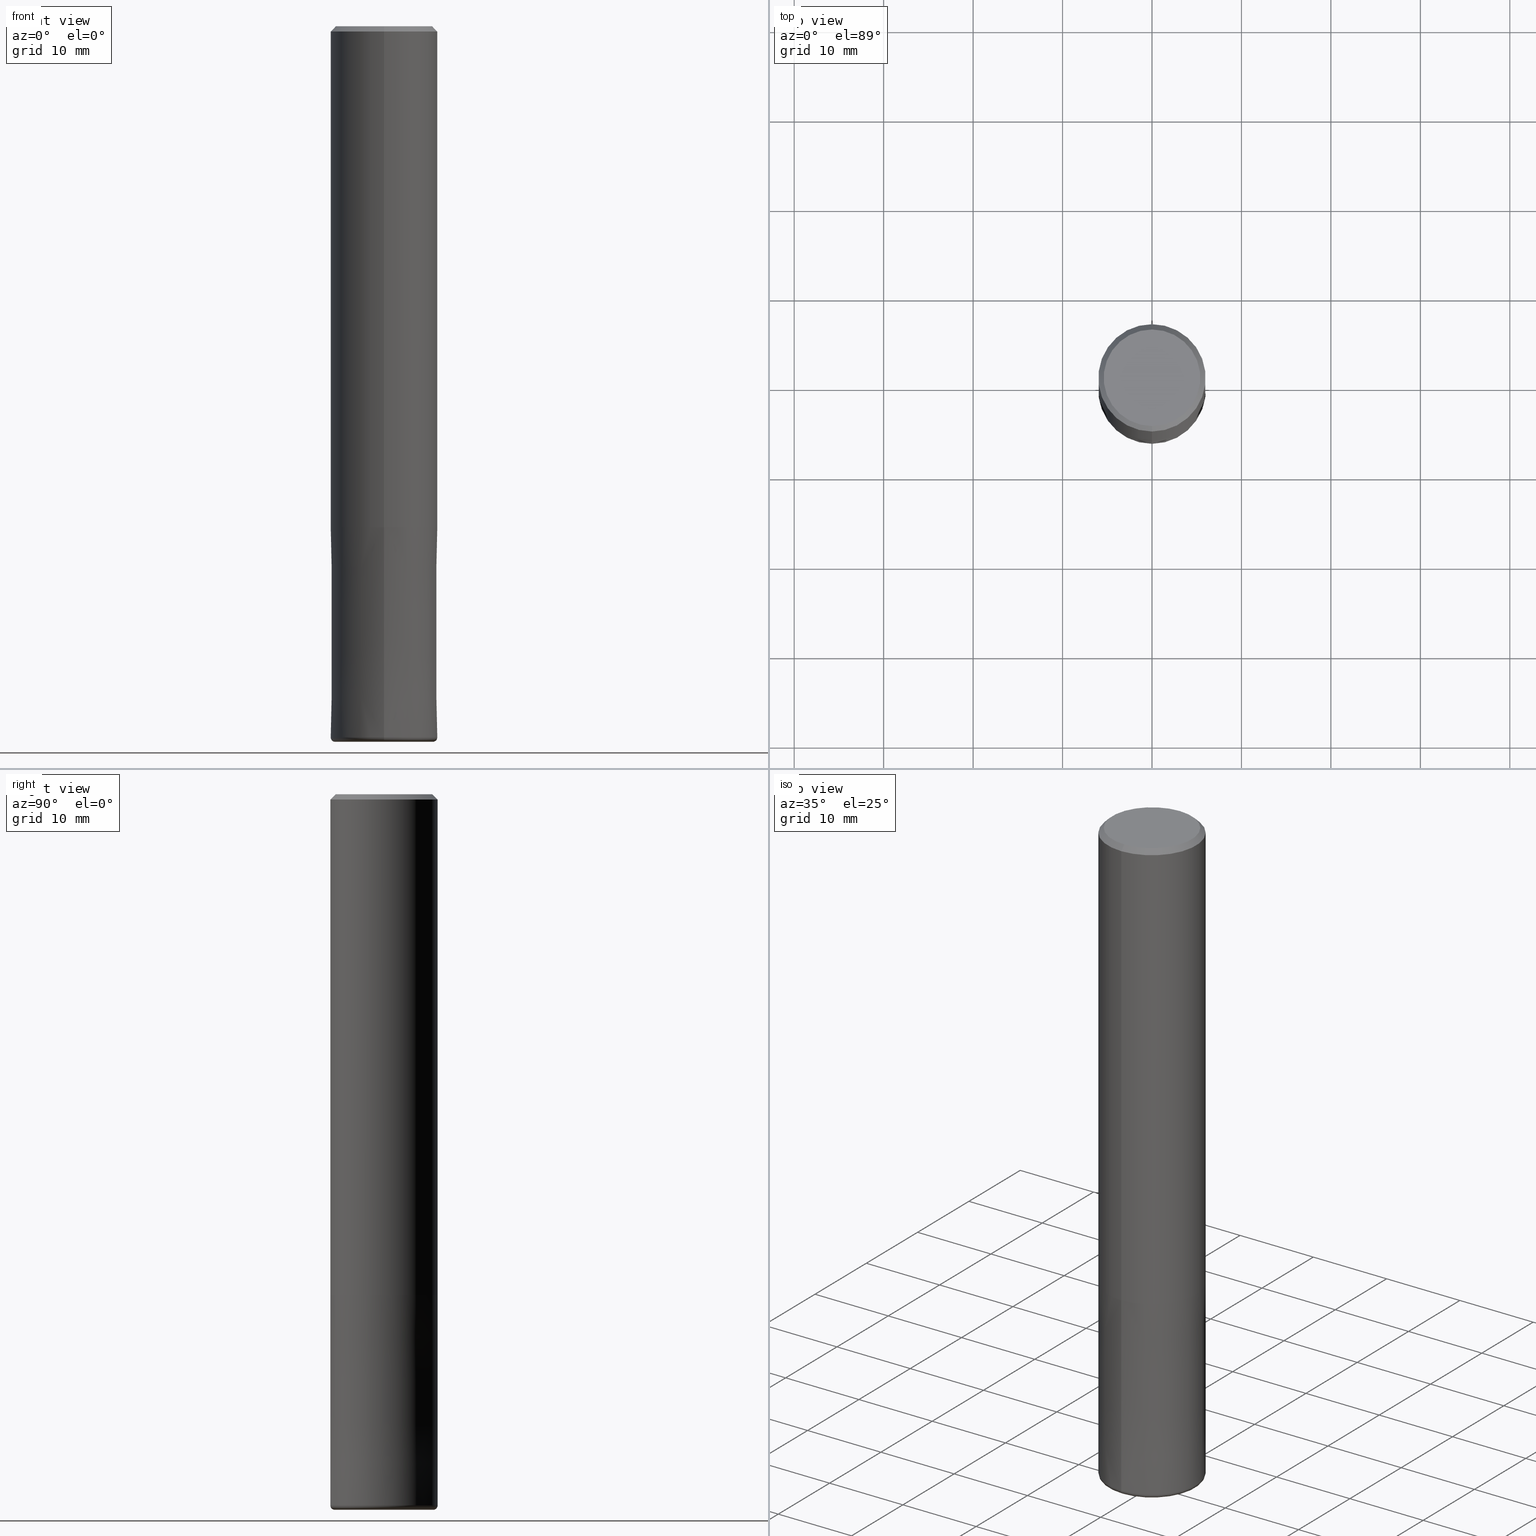
[diagram: canonical four-view strip — front | top / right | iso, engineering-drawing reading convention]
A machine part, canonical four-view strip (front | top / right | iso — engineering-drawing reading convention). The complete STEP part file that produces these views, byte-faithful:
ISO-10303-21;
HEADER;
FILE_DESCRIPTION(('no description'),'unknown implementation level');
FILE_NAME('CXRS5120-05-2400-Huellk.stp','  ',('CIMSOURCE GmbH'),('CADClick - KiM GmbH - www.kimweb.de'),'unknown preprocess','ACIS','unknown authorization');
FILE_SCHEMA(('automotive_design'));
ENDSEC;
DATA;
#1=MECHANICAL_DESIGN_GEOMETRIC_PRESENTATION_REPRESENTATION(' ',(#14,#15,#16,#17,#18,#19,#20,#21,#22,#23,#24,#25,#26,#27,#28,#29,#30,#31,#32,#33,#34,#35,#36,#37,#38,#39,#40,#41,#42,#43,#44,#45,#46,#47,#48,#49,#50,#51,#52,#53,#54,#55,#56,#57,#58,#59,#60,#61,#62,#63,#64,#65,#66,#67,#68,#69,#70,#71,#72,#73,#74,#75,#76,#77,#78,#79,#80,#81,#82,#83,#84),#10);
#2=PRODUCT_DEFINITION_CONTEXT('',#85,'design');
#3=APPLICATION_PROTOCOL_DEFINITION('INTERNATIONAL STANDARD','automotive_design',1994,#85);
#4=PRODUCT_CATEGORY_RELATIONSHIP('NONE','NONE',#86,#87);
#5=SHAPE_DEFINITION_REPRESENTATION(#88,#89);
#6=PRODUCT_DEFINITION_CONTEXT('',#90,'design');
#7=APPLICATION_PROTOCOL_DEFINITION('INTERNATIONAL STANDARD','automotive_design',1994,#90);
#8=PRODUCT_CATEGORY_RELATIONSHIP('NONE','NONE',#91,#92);
#9=SHAPE_DEFINITION_REPRESENTATION(#93,#94);
#10= (GEOMETRIC_REPRESENTATION_CONTEXT(3)GLOBAL_UNCERTAINTY_ASSIGNED_CONTEXT((#97))GLOBAL_UNIT_ASSIGNED_CONTEXT((#99,#100,#101))REPRESENTATION_CONTEXT('NONE','WORKSPACE'));
#14=STYLED_ITEM('',(#103),#104);
#15=STYLED_ITEM('',(#105),#106);
#16=STYLED_ITEM('',(#107),#108);
#17=STYLED_ITEM('',(#109),#110);
#18=STYLED_ITEM('',(#111),#112);
#19=STYLED_ITEM('',(#113),#114);
#20=STYLED_ITEM('',(#115),#116);
#21=STYLED_ITEM('',(#117),#118);
#22=STYLED_ITEM('',(#119),#120);
#23=STYLED_ITEM('',(#121),#122);
#24=STYLED_ITEM('',(#123),#124);
#25=STYLED_ITEM('',(#125),#126);
#26=STYLED_ITEM('',(#127),#128);
#27=STYLED_ITEM('',(#129),#130);
#28=STYLED_ITEM('',(#131),#132);
#29=STYLED_ITEM('',(#133),#134);
#30=STYLED_ITEM('',(#135),#136);
#31=STYLED_ITEM('',(#137),#138);
#32=STYLED_ITEM('',(#139),#140);
#33=STYLED_ITEM('',(#141),#142);
#34=STYLED_ITEM('',(#143),#144);
#35=STYLED_ITEM('',(#145),#146);
#36=STYLED_ITEM('',(#147),#148);
#37=STYLED_ITEM('',(#149),#150);
#38=STYLED_ITEM('',(#151),#152);
#39=STYLED_ITEM('',(#153),#154);
#40=STYLED_ITEM('',(#155),#156);
#41=STYLED_ITEM('',(#157),#158);
#42=STYLED_ITEM('',(#159),#160);
#43=STYLED_ITEM('',(#161),#162);
#44=STYLED_ITEM('',(#163),#164);
#45=STYLED_ITEM('',(#165),#166);
#46=STYLED_ITEM('',(#167),#168);
#47=STYLED_ITEM('',(#169),#170);
#48=STYLED_ITEM('',(#171),#172);
#49=STYLED_ITEM('',(#173),#174);
#50=STYLED_ITEM('',(#175),#176);
#51=STYLED_ITEM('',(#177),#178);
#52=STYLED_ITEM('',(#179),#180);
#53=STYLED_ITEM('',(#181),#182);
#54=STYLED_ITEM('',(#183),#184);
#55=STYLED_ITEM('',(#185),#186);
#56=STYLED_ITEM('',(#187),#188);
#57=STYLED_ITEM('',(#189),#190);
#58=STYLED_ITEM('',(#191),#192);
#59=STYLED_ITEM('',(#193),#194);
#60=STYLED_ITEM('',(#195),#196);
#61=STYLED_ITEM('',(#197),#198);
#62=STYLED_ITEM('',(#199),#200);
#63=STYLED_ITEM('',(#201),#202);
#64=STYLED_ITEM('',(#203),#204);
#65=STYLED_ITEM('',(#205),#206);
#66=STYLED_ITEM('',(#207),#208);
#67=STYLED_ITEM('',(#209),#210);
#68=STYLED_ITEM('',(#211),#212);
#69=STYLED_ITEM('',(#213),#214);
#70=STYLED_ITEM('',(#215),#216);
#71=STYLED_ITEM('',(#217),#218);
#72=STYLED_ITEM('',(#219),#220);
#73=STYLED_ITEM('',(#221),#222);
#74=STYLED_ITEM('',(#223),#224);
#75=STYLED_ITEM('',(#225),#226);
#76=STYLED_ITEM('',(#227),#228);
#77=STYLED_ITEM('',(#229),#230);
#78=STYLED_ITEM('',(#231),#232);
#79=STYLED_ITEM('',(#233),#234);
#80=STYLED_ITEM('',(#235),#236);
#81=STYLED_ITEM('',(#237),#238);
#82=STYLED_ITEM('',(#239),#240);
#83=STYLED_ITEM('',(#241),#242);
#84=STYLED_ITEM('',(#243),#244);
#85=APPLICATION_CONTEXT(' ');
#86=PRODUCT_CATEGORY('part','NONE');
#87=PRODUCT_RELATED_PRODUCT_CATEGORY('detail',' ',(#245));
#88=PRODUCT_DEFINITION_SHAPE('NONE','NONE',#246);
#89=ADVANCED_BREP_SHAPE_REPRESENTATION('1',(#202,#247),#10);
#90=APPLICATION_CONTEXT(' ');
#91=PRODUCT_CATEGORY('part','NONE');
#92=PRODUCT_RELATED_PRODUCT_CATEGORY('detail',' ',(#248));
#93=PRODUCT_DEFINITION_SHAPE('NONE','NONE',#249);
#94=ADVANCED_BREP_SHAPE_REPRESENTATION('2',(#118,#250),#10);
#97=UNCERTAINTY_MEASURE_WITH_UNIT(LENGTH_MEASURE(1.0E-006),#99,'','');
#99= (CONVERSION_BASED_UNIT('MILLIMETRE',#253)LENGTH_UNIT()NAMED_UNIT(#256));
#100= (NAMED_UNIT(#258)PLANE_ANGLE_UNIT()SI_UNIT($,.RADIAN.));
#101= (NAMED_UNIT(#258)SOLID_ANGLE_UNIT()SI_UNIT($,.STERADIAN.));
#103=PRESENTATION_STYLE_ASSIGNMENT((#264));
#104=VERTEX_POINT('',#265);
#105=PRESENTATION_STYLE_ASSIGNMENT((#266));
#106=EDGE_CURVE('',#122,#206,#267,.T.);
#107=PRESENTATION_STYLE_ASSIGNMENT((#268));
#108=EDGE_CURVE('',#238,#232,#269,.T.);
#109=PRESENTATION_STYLE_ASSIGNMENT((#270));
#110=EDGE_CURVE('',#192,#182,#271,.T.);
#111=PRESENTATION_STYLE_ASSIGNMENT((#272));
#112=EDGE_CURVE('',#206,#154,#273,.T.);
#113=PRESENTATION_STYLE_ASSIGNMENT((#274));
#114=EDGE_CURVE('',#172,#166,#275,.T.);
#115=PRESENTATION_STYLE_ASSIGNMENT((#276));
#116=EDGE_CURVE('',#206,#122,#277,.T.);
#117=PRESENTATION_STYLE_ASSIGNMENT((#278));
#118=MANIFOLD_SOLID_BREP('2',#279);
#119=PRESENTATION_STYLE_ASSIGNMENT((#280));
#120=VERTEX_POINT('',#281);
#121=PRESENTATION_STYLE_ASSIGNMENT((#282));
#122=VERTEX_POINT('',#283);
#123=PRESENTATION_STYLE_ASSIGNMENT((#284));
#124=EDGE_CURVE('',#120,#122,#285,.T.);
#125=PRESENTATION_STYLE_ASSIGNMENT((#286));
#126=VERTEX_POINT('',#287);
#127=PRESENTATION_STYLE_ASSIGNMENT((#288));
#128=ADVANCED_FACE('',(#289),#290,.T.);
#129=PRESENTATION_STYLE_ASSIGNMENT((#291));
#130=EDGE_CURVE('',#104,#198,#292,.T.);
#131=PRESENTATION_STYLE_ASSIGNMENT((#293));
#132=VERTEX_POINT('',#294);
#133=PRESENTATION_STYLE_ASSIGNMENT((#295));
#134=EDGE_CURVE('',#126,#232,#296,.T.);
#135=PRESENTATION_STYLE_ASSIGNMENT((#297));
#136=EDGE_CURVE('',#228,#232,#298,.T.);
#137=PRESENTATION_STYLE_ASSIGNMENT((#299));
#138=ADVANCED_FACE('',(#300,#301),#302,.T.);
#139=PRESENTATION_STYLE_ASSIGNMENT((#303));
#140=ADVANCED_FACE('',(#304),#305,.T.);
#141=PRESENTATION_STYLE_ASSIGNMENT((#306));
#142=EDGE_CURVE('',#166,#150,#307,.T.);
#143=PRESENTATION_STYLE_ASSIGNMENT((#308));
#144=ADVANCED_FACE('',(#309),#310,.T.);
#145=PRESENTATION_STYLE_ASSIGNMENT((#311));
#146=EDGE_CURVE('',#182,#192,#312,.T.);
#147=PRESENTATION_STYLE_ASSIGNMENT((#313));
#148=EDGE_CURVE('',#166,#172,#314,.T.);
#149=PRESENTATION_STYLE_ASSIGNMENT((#315));
#150=VERTEX_POINT('',#316);
#151=PRESENTATION_STYLE_ASSIGNMENT((#317));
#152=ADVANCED_FACE('',(#318,#319),#320,.T.);
#153=PRESENTATION_STYLE_ASSIGNMENT((#321));
#154=VERTEX_POINT('',#322);
#155=PRESENTATION_STYLE_ASSIGNMENT((#323));
#156=ADVANCED_FACE('',(#324),#325,.F.);
#157=PRESENTATION_STYLE_ASSIGNMENT((#326));
#158=ADVANCED_FACE('',(#327),#328,.T.);
#159=PRESENTATION_STYLE_ASSIGNMENT((#329));
#160=EDGE_CURVE('',#198,#104,#330,.T.);
#161=PRESENTATION_STYLE_ASSIGNMENT((#331));
#162=EDGE_CURVE('',#228,#194,#332,.T.);
#163=PRESENTATION_STYLE_ASSIGNMENT((#333));
#164=EDGE_CURVE('',#198,#176,#334,.T.);
#165=PRESENTATION_STYLE_ASSIGNMENT((#335));
#166=VERTEX_POINT('',#336);
#167=PRESENTATION_STYLE_ASSIGNMENT((#337));
#168=EDGE_CURVE('',#122,#182,#338,.T.);
#169=PRESENTATION_STYLE_ASSIGNMENT((#339));
#170=EDGE_CURVE('',#132,#150,#340,.T.);
#171=PRESENTATION_STYLE_ASSIGNMENT((#341));
#172=VERTEX_POINT('',#342);
#173=PRESENTATION_STYLE_ASSIGNMENT((#343));
#174=ADVANCED_FACE('',(#344),#345,.F.);
#175=PRESENTATION_STYLE_ASSIGNMENT((#346));
#176=VERTEX_POINT('',#347);
#177=PRESENTATION_STYLE_ASSIGNMENT((#348));
#178=EDGE_CURVE('',#236,#104,#349,.T.);
#179=PRESENTATION_STYLE_ASSIGNMENT((#350));
#180=ADVANCED_FACE('',(#351),#352,.T.);
#181=PRESENTATION_STYLE_ASSIGNMENT((#353));
#182=VERTEX_POINT('',#354);
#183=PRESENTATION_STYLE_ASSIGNMENT((#355));
#184=ADVANCED_FACE('',(#356,#357),#358,.T.);
#185=PRESENTATION_STYLE_ASSIGNMENT((#359));
#186=EDGE_CURVE('',#150,#132,#360,.T.);
#187=PRESENTATION_STYLE_ASSIGNMENT((#361));
#188=EDGE_CURVE('',#176,#236,#362,.T.);
#189=PRESENTATION_STYLE_ASSIGNMENT((#363));
#190=ADVANCED_FACE('',(#364),#365,.T.);
#191=PRESENTATION_STYLE_ASSIGNMENT((#366));
#192=VERTEX_POINT('',#367);
#193=PRESENTATION_STYLE_ASSIGNMENT((#368));
#194=VERTEX_POINT('',#369);
#195=PRESENTATION_STYLE_ASSIGNMENT((#370));
#196=EDGE_CURVE('',#232,#126,#371,.T.);
#197=PRESENTATION_STYLE_ASSIGNMENT((#372));
#198=VERTEX_POINT('',#373);
#199=PRESENTATION_STYLE_ASSIGNMENT((#374));
#200=EDGE_CURVE('',#120,#154,#375,.T.);
#201=PRESENTATION_STYLE_ASSIGNMENT((#376));
#202=MANIFOLD_SOLID_BREP('1',#377);
#203=PRESENTATION_STYLE_ASSIGNMENT((#378));
#204=EDGE_CURVE('',#132,#172,#379,.T.);
#205=PRESENTATION_STYLE_ASSIGNMENT((#380));
#206=VERTEX_POINT('',#381);
#207=PRESENTATION_STYLE_ASSIGNMENT((#382));
#208=EDGE_CURVE('',#192,#206,#383,.T.);
#209=PRESENTATION_STYLE_ASSIGNMENT((#384));
#210=ADVANCED_FACE('',(#385),#386,.T.);
#211=PRESENTATION_STYLE_ASSIGNMENT((#387));
#212=ADVANCED_FACE('',(#388),#389,.T.);
#213=PRESENTATION_STYLE_ASSIGNMENT((#390));
#214=ADVANCED_FACE('',(#391),#392,.T.);
#215=PRESENTATION_STYLE_ASSIGNMENT((#393));
#216=VERTEX_POINT('',#394);
#217=PRESENTATION_STYLE_ASSIGNMENT((#395));
#218=EDGE_CURVE('',#126,#216,#396,.T.);
#219=PRESENTATION_STYLE_ASSIGNMENT((#397));
#220=EDGE_CURVE('',#216,#238,#398,.T.);
#221=PRESENTATION_STYLE_ASSIGNMENT((#399));
#222=ADVANCED_FACE('',(#400),#401,.T.);
#223=PRESENTATION_STYLE_ASSIGNMENT((#402));
#224=ADVANCED_FACE('',(#403),#404,.T.);
#225=PRESENTATION_STYLE_ASSIGNMENT((#405));
#226=ADVANCED_FACE('',(#406),#407,.T.);
#227=PRESENTATION_STYLE_ASSIGNMENT((#408));
#228=VERTEX_POINT('',#409);
#229=PRESENTATION_STYLE_ASSIGNMENT((#410));
#230=EDGE_CURVE('',#194,#228,#411,.T.);
#231=PRESENTATION_STYLE_ASSIGNMENT((#412));
#232=VERTEX_POINT('',#413);
#233=PRESENTATION_STYLE_ASSIGNMENT((#414));
#234=EDGE_CURVE('',#238,#216,#415,.T.);
#235=PRESENTATION_STYLE_ASSIGNMENT((#416));
#236=VERTEX_POINT('',#417);
#237=PRESENTATION_STYLE_ASSIGNMENT((#418));
#238=VERTEX_POINT('',#419);
#239=PRESENTATION_STYLE_ASSIGNMENT((#420));
#240=EDGE_CURVE('',#126,#194,#421,.T.);
#241=PRESENTATION_STYLE_ASSIGNMENT((#422));
#242=EDGE_CURVE('',#236,#176,#423,.T.);
#243=PRESENTATION_STYLE_ASSIGNMENT((#424));
#244=EDGE_CURVE('',#154,#120,#425,.T.);
#245=PRODUCT('1','1','PART-1-DESC',(#426));
#246=PRODUCT_DEFINITION('NONE','NONE',#427,#2);
#247=AXIS2_PLACEMENT_3D('',#428,#429,#430);
#248=PRODUCT('2','2','PART-2-DESC',(#431));
#249=PRODUCT_DEFINITION('NONE','NONE',#432,#6);
#250=AXIS2_PLACEMENT_3D('',#433,#434,#435);
#253=LENGTH_MEASURE_WITH_UNIT(LENGTH_MEASURE(1.0),#436);
#256=DIMENSIONAL_EXPONENTS(1.0,0.0,0.0,0.0,0.0,0.0,0.0);
#258=DIMENSIONAL_EXPONENTS(0.0,0.0,0.0,0.0,0.0,0.0,0.0);
#264=POINT_STYLE(' ',#437,POSITIVE_LENGTH_MEASURE(1.0E-006),#438);
#265=CARTESIAN_POINT('',(0.0,2.7,-80.0));
#266=CURVE_STYLE('',#439,POSITIVE_LENGTH_MEASURE(1.0E-006),#440);
#267=CIRCLE('',#441,6.0);
#268=CURVE_STYLE('',#442,POSITIVE_LENGTH_MEASURE(1.0E-006),#443);
#269=CIRCLE('',#444,0.500000000000007);
#270=CURVE_STYLE('',#445,POSITIVE_LENGTH_MEASURE(1.0E-006),#446);
#271=CIRCLE('',#447,5.4);
#272=CURVE_STYLE('',#448,POSITIVE_LENGTH_MEASURE(1.0E-006),#449);
#273=LINE('',#450,#451);
#274=CURVE_STYLE('',#452,POSITIVE_LENGTH_MEASURE(1.0E-006),#453);
#275=CIRCLE('',#454,2.7);
#276=CURVE_STYLE('',#455,POSITIVE_LENGTH_MEASURE(1.0E-006),#456);
#277=CIRCLE('',#457,6.0);
#278=SURFACE_STYLE_USAGE(.BOTH.,#458);
#279=CLOSED_SHELL('',(#156,#158,#190,#138,#214,#128,#184,#174));
#280=POINT_STYLE(' ',#459,POSITIVE_LENGTH_MEASURE(1.0E-006),#460);
#281=CARTESIAN_POINT('',(7.34763812293426E-016,-6.0,-56.0));
#282=POINT_STYLE(' ',#461,POSITIVE_LENGTH_MEASURE(1.0E-006),#462);
#283=CARTESIAN_POINT('',(7.34763812293426E-016,-6.0,-0.600000000000001));
#284=CURVE_STYLE('',#463,POSITIVE_LENGTH_MEASURE(1.0E-006),#464);
#285=LINE('',#465,#466);
#286=POINT_STYLE(' ',#467,POSITIVE_LENGTH_MEASURE(1.0E-006),#468);
#287=CARTESIAN_POINT('',(7.34763812293426E-016,-6.0,-79.5));
#288=SURFACE_STYLE_USAGE(.BOTH.,#469);
#289=FACE_OUTER_BOUND('',#470,.T.);
#290=TOROIDAL_SURFACE('',#471,5.49999999999999,0.500000000000007);
#291=CURVE_STYLE('',#472,POSITIVE_LENGTH_MEASURE(1.0E-006),#473);
#292=CIRCLE('',#474,2.7);
#293=POINT_STYLE(' ',#475,POSITIVE_LENGTH_MEASURE(1.0E-006),#476);
#294=CARTESIAN_POINT('',(0.0,2.7,-56.0));
#295=CURVE_STYLE('',#477,POSITIVE_LENGTH_MEASURE(1.0E-006),#478);
#296=CIRCLE('',#479,6.0);
#297=CURVE_STYLE('',#480,POSITIVE_LENGTH_MEASURE(1.0E-006),#481);
#298=LINE('',#482,#483);
#299=SURFACE_STYLE_USAGE(.BOTH.,#484);
#300=FACE_OUTER_BOUND('',#485,.T.);
#301=FACE_BOUND('',#486,.T.);
#302=PLANE('',#487);
#303=SURFACE_STYLE_USAGE(.BOTH.,#488);
#304=FACE_OUTER_BOUND('',#489,.T.);
#305=CYLINDRICAL_SURFACE('',#490,2.7);
#306=CURVE_STYLE('',#491,POSITIVE_LENGTH_MEASURE(1.0E-006),#492);
#307=LINE('',#493,#494);
#308=SURFACE_STYLE_USAGE(.BOTH.,#495);
#309=FACE_OUTER_BOUND('',#496,.T.);
#310=CONICAL_SURFACE('',#497,5.7,0.785398163397447);
#311=CURVE_STYLE('',#498,POSITIVE_LENGTH_MEASURE(1.0E-006),#499);
#312=CIRCLE('',#500,5.4);
#313=CURVE_STYLE('',#501,POSITIVE_LENGTH_MEASURE(1.0E-006),#502);
#314=CIRCLE('',#503,2.7);
#315=POINT_STYLE(' ',#504,POSITIVE_LENGTH_MEASURE(1.0E-006),#505);
#316=CARTESIAN_POINT('',(3.30643715532042E-016,-2.7,-56.0));
#317=SURFACE_STYLE_USAGE(.BOTH.,#506);
#318=FACE_OUTER_BOUND('',#507,.T.);
#319=FACE_BOUND('',#508,.T.);
#320=PLANE('',#509);
#321=POINT_STYLE(' ',#510,POSITIVE_LENGTH_MEASURE(1.0E-006),#511);
#322=CARTESIAN_POINT('',(0.0,6.0,-56.0));
#323=SURFACE_STYLE_USAGE(.BOTH.,#512);
#324=FACE_OUTER_BOUND('',#513,.T.);
#325=CYLINDRICAL_SURFACE('',#514,2.7);
#326=SURFACE_STYLE_USAGE(.BOTH.,#515);
#327=FACE_OUTER_BOUND('',#516,.T.);
#328=TOROIDAL_SURFACE('',#517,5.49999999999999,0.500000000000007);
#329=CURVE_STYLE('',#518,POSITIVE_LENGTH_MEASURE(1.0E-006),#519);
#330=CIRCLE('',#520,2.7);
#331=CURVE_STYLE('',#521,POSITIVE_LENGTH_MEASURE(1.0E-006),#522);
#332=CIRCLE('',#523,5.9999);
#333=CURVE_STYLE('',#524,POSITIVE_LENGTH_MEASURE(1.0E-006),#525);
#334=LINE('',#526,#527);
#335=POINT_STYLE(' ',#528,POSITIVE_LENGTH_MEASURE(1.0E-006),#529);
#336=CARTESIAN_POINT('',(3.30643715532042E-016,-2.7,-79.76));
#337=CURVE_STYLE('',#530,POSITIVE_LENGTH_MEASURE(1.0E-006),#531);
#338=LINE('',#532,#533);
#339=CURVE_STYLE('',#534,POSITIVE_LENGTH_MEASURE(1.0E-006),#535);
#340=CIRCLE('',#536,2.7);
#341=POINT_STYLE(' ',#537,POSITIVE_LENGTH_MEASURE(1.0E-006),#538);
#342=CARTESIAN_POINT('',(0.0,2.7,-79.76));
#343=SURFACE_STYLE_USAGE(.BOTH.,#539);
#344=FACE_OUTER_BOUND('',#540,.T.);
#345=CYLINDRICAL_SURFACE('',#541,2.7);
#346=POINT_STYLE(' ',#542,POSITIVE_LENGTH_MEASURE(1.0E-006),#543);
#347=CARTESIAN_POINT('',(3.30643715532042E-016,-2.7,-56.0));
#348=CURVE_STYLE('',#544,POSITIVE_LENGTH_MEASURE(1.0E-006),#545);
#349=LINE('',#546,#547);
#350=SURFACE_STYLE_USAGE(.BOTH.,#548);
#351=FACE_OUTER_BOUND('',#549,.T.);
#352=CYLINDRICAL_SURFACE('',#550,6.0);
#353=POINT_STYLE(' ',#551,POSITIVE_LENGTH_MEASURE(1.0E-006),#552);
#354=CARTESIAN_POINT('',(6.61287431064084E-016,-5.4,0.0));
#355=SURFACE_STYLE_USAGE(.BOTH.,#553);
#356=FACE_BOUND('',#554,.T.);
#357=FACE_OUTER_BOUND('',#555,.T.);
#358=PLANE('',#556);
#359=CURVE_STYLE('',#557,POSITIVE_LENGTH_MEASURE(1.0E-006),#558);
#360=CIRCLE('',#559,2.7);
#361=CURVE_STYLE('',#560,POSITIVE_LENGTH_MEASURE(1.0E-006),#561);
#362=CIRCLE('',#562,2.7);
#363=SURFACE_STYLE_USAGE(.BOTH.,#563);
#364=FACE_OUTER_BOUND('',#564,.T.);
#365=CONICAL_SURFACE('',#565,5.99995,4.25531914890057E-006);
#366=POINT_STYLE(' ',#566,POSITIVE_LENGTH_MEASURE(1.0E-006),#567);
#367=CARTESIAN_POINT('',(0.0,5.4,0.0));
#368=POINT_STYLE(' ',#568,POSITIVE_LENGTH_MEASURE(1.0E-006),#569);
#369=CARTESIAN_POINT('',(7.34751566229888E-016,-5.9999,-56.0));
#370=CURVE_STYLE('',#570,POSITIVE_LENGTH_MEASURE(1.0E-006),#571);
#371=CIRCLE('',#572,6.0);
#372=POINT_STYLE(' ',#573,POSITIVE_LENGTH_MEASURE(1.0E-006),#574);
#373=CARTESIAN_POINT('',(3.30643715532042E-016,-2.7,-80.0));
#374=CURVE_STYLE('',#575,POSITIVE_LENGTH_MEASURE(1.0E-006),#576);
#375=CIRCLE('',#577,6.0);
#376=SURFACE_STYLE_USAGE(.BOTH.,#578);
#377=CLOSED_SHELL('',(#140,#180,#144,#152,#210,#222,#226,#224,#212));
#378=CURVE_STYLE('',#579,POSITIVE_LENGTH_MEASURE(1.0E-006),#580);
#379=LINE('',#581,#582);
#380=POINT_STYLE(' ',#583,POSITIVE_LENGTH_MEASURE(1.0E-006),#584);
#381=CARTESIAN_POINT('',(0.0,6.0,-0.600000000000001));
#382=CURVE_STYLE('',#585,POSITIVE_LENGTH_MEASURE(1.0E-006),#586);
#383=LINE('',#587,#588);
#384=SURFACE_STYLE_USAGE(.BOTH.,#589);
#385=FACE_OUTER_BOUND('',#590,.T.);
#386=PLANE('',#591);
#387=SURFACE_STYLE_USAGE(.BOTH.,#592);
#388=FACE_OUTER_BOUND('',#593,.T.);
#389=PLANE('',#594);
#390=SURFACE_STYLE_USAGE(.BOTH.,#595);
#391=FACE_OUTER_BOUND('',#596,.T.);
#392=CONICAL_SURFACE('',#597,5.99995,4.25531914890057E-006);
#393=POINT_STYLE(' ',#598,POSITIVE_LENGTH_MEASURE(1.0E-006),#599);
#394=CARTESIAN_POINT('',(6.73533494602307E-016,-5.5,-80.0));
#395=CURVE_STYLE('',#600,POSITIVE_LENGTH_MEASURE(1.0E-006),#601);
#396=CIRCLE('',#602,0.500000000000007);
#397=CURVE_STYLE('',#603,POSITIVE_LENGTH_MEASURE(1.0E-006),#604);
#398=CIRCLE('',#605,5.5);
#399=SURFACE_STYLE_USAGE(.BOTH.,#606);
#400=FACE_OUTER_BOUND('',#607,.T.);
#401=CONICAL_SURFACE('',#608,5.7,0.785398163397447);
#402=SURFACE_STYLE_USAGE(.BOTH.,#609);
#403=FACE_OUTER_BOUND('',#610,.T.);
#404=CYLINDRICAL_SURFACE('',#611,2.7);
#405=SURFACE_STYLE_USAGE(.BOTH.,#612);
#406=FACE_OUTER_BOUND('',#613,.T.);
#407=CYLINDRICAL_SURFACE('',#614,6.0);
#408=POINT_STYLE(' ',#615,POSITIVE_LENGTH_MEASURE(1.0E-006),#616);
#409=CARTESIAN_POINT('',(0.0,5.9999,-56.0));
#410=CURVE_STYLE('',#617,POSITIVE_LENGTH_MEASURE(1.0E-006),#618);
#411=CIRCLE('',#619,5.9999);
#412=POINT_STYLE(' ',#620,POSITIVE_LENGTH_MEASURE(1.0E-006),#621);
#413=CARTESIAN_POINT('',(0.0,6.0,-79.5));
#414=CURVE_STYLE('',#622,POSITIVE_LENGTH_MEASURE(1.0E-006),#623);
#415=CIRCLE('',#624,5.5);
#416=POINT_STYLE(' ',#625,POSITIVE_LENGTH_MEASURE(1.0E-006),#626);
#417=CARTESIAN_POINT('',(0.0,2.7,-56.0));
#418=POINT_STYLE(' ',#627,POSITIVE_LENGTH_MEASURE(1.0E-006),#628);
#419=CARTESIAN_POINT('',(0.0,5.5,-80.0));
#420=CURVE_STYLE('',#629,POSITIVE_LENGTH_MEASURE(1.0E-006),#630);
#421=LINE('',#631,#632);
#422=CURVE_STYLE('',#633,POSITIVE_LENGTH_MEASURE(1.0E-006),#634);
#423=CIRCLE('',#635,2.7);
#424=CURVE_STYLE('',#636,POSITIVE_LENGTH_MEASURE(1.0E-006),#637);
#425=CIRCLE('',#638,6.0);
#426=PRODUCT_CONTEXT('',#85,'mechanical');
#427=PRODUCT_DEFINITION_FORMATION_WITH_SPECIFIED_SOURCE(' ','NONE',#245,.NOT_KNOWN.);
#428=CARTESIAN_POINT('',(0.0,0.0,0.0));
#429=DIRECTION('',(0.0,0.0,1.0));
#430=DIRECTION('',(1.0,0.0,0.0));
#431=PRODUCT_CONTEXT('',#90,'mechanical');
#432=PRODUCT_DEFINITION_FORMATION_WITH_SPECIFIED_SOURCE(' ','NONE',#248,.NOT_KNOWN.);
#433=CARTESIAN_POINT('',(0.0,0.0,0.0));
#434=DIRECTION('',(0.0,0.0,1.0));
#435=DIRECTION('',(1.0,0.0,0.0));
#436= (NAMED_UNIT(#256)LENGTH_UNIT()SI_UNIT(.MILLI.,.METRE.));
#437=PRE_DEFINED_MARKER('');
#438=COLOUR_RGB('',0.800000011920929,0.800000011920929,0.800000011920929);
#439=DRAUGHTING_PRE_DEFINED_CURVE_FONT('continuous');
#440=COLOUR_RGB('',0.498039215803146,0.498039215803146,0.498039215803146);
#441=AXIS2_PLACEMENT_3D('',#640,#641,#642);
#442=DRAUGHTING_PRE_DEFINED_CURVE_FONT('continuous');
#443=COLOUR_RGB('',0.800000011920929,0.800000011920929,0.800000011920929);
#444=AXIS2_PLACEMENT_3D('',#643,#644,#645);
#445=DRAUGHTING_PRE_DEFINED_CURVE_FONT('continuous');
#446=COLOUR_RGB('',0.498039215803146,0.498039215803146,0.498039215803146);
#447=AXIS2_PLACEMENT_3D('',#646,#647,#648);
#448=DRAUGHTING_PRE_DEFINED_CURVE_FONT('continuous');
#449=COLOUR_RGB('',0.498039215803146,0.498039215803146,0.498039215803146);
#450=CARTESIAN_POINT('',(-7.34763812293426E-016,6.0,-28.3));
#451=VECTOR('',#649,1.0);
#452=DRAUGHTING_PRE_DEFINED_CURVE_FONT('continuous');
#453=COLOUR_RGB('',0.498039215803146,0.498039215803146,0.498039215803146);
#454=AXIS2_PLACEMENT_3D('',#650,#651,#652);
#455=DRAUGHTING_PRE_DEFINED_CURVE_FONT('continuous');
#456=COLOUR_RGB('',0.498039215803146,0.498039215803146,0.498039215803146);
#457=AXIS2_PLACEMENT_3D('',#653,#654,#655);
#458=SURFACE_SIDE_STYLE('',(#656));
#459=PRE_DEFINED_MARKER('');
#460=COLOUR_RGB('',0.498039215803146,0.498039215803146,0.498039215803146);
#461=PRE_DEFINED_MARKER('');
#462=COLOUR_RGB('',0.498039215803146,0.498039215803146,0.498039215803146);
#463=DRAUGHTING_PRE_DEFINED_CURVE_FONT('continuous');
#464=COLOUR_RGB('',0.498039215803146,0.498039215803146,0.498039215803146);
#465=CARTESIAN_POINT('',(7.34763812293426E-016,-6.0,-28.3));
#466=VECTOR('',#657,1.0);
#467=PRE_DEFINED_MARKER('');
#468=COLOUR_RGB('',0.800000011920929,0.800000011920929,0.800000011920929);
#469=SURFACE_SIDE_STYLE('',(#658));
#470=EDGE_LOOP('',(#659,#660,#661,#662));
#471=AXIS2_PLACEMENT_3D('',#663,#664,#665);
#472=DRAUGHTING_PRE_DEFINED_CURVE_FONT('continuous');
#473=COLOUR_RGB('',0.800000011920929,0.800000011920929,0.800000011920929);
#474=AXIS2_PLACEMENT_3D('',#666,#667,#668);
#475=PRE_DEFINED_MARKER('');
#476=COLOUR_RGB('',0.498039215803146,0.498039215803146,0.498039215803146);
#477=DRAUGHTING_PRE_DEFINED_CURVE_FONT('continuous');
#478=COLOUR_RGB('',0.800000011920929,0.800000011920929,0.800000011920929);
#479=AXIS2_PLACEMENT_3D('',#669,#670,#671);
#480=DRAUGHTING_PRE_DEFINED_CURVE_FONT('continuous');
#481=COLOUR_RGB('',0.800000011920929,0.800000011920929,0.800000011920929);
#482=CARTESIAN_POINT('',(-7.34757689261657E-016,5.99995,-67.75));
#483=VECTOR('',#672,1.0);
#484=SURFACE_SIDE_STYLE('',(#673));
#485=EDGE_LOOP('',(#674,#675));
#486=EDGE_LOOP('',(#676,#677));
#487=AXIS2_PLACEMENT_3D('',#678,#679,#680);
#488=SURFACE_SIDE_STYLE('',(#681));
#489=EDGE_LOOP('',(#682,#683,#684,#685));
#490=AXIS2_PLACEMENT_3D('',#686,#687,#688);
#491=DRAUGHTING_PRE_DEFINED_CURVE_FONT('continuous');
#492=COLOUR_RGB('',0.498039215803146,0.498039215803146,0.498039215803146);
#493=CARTESIAN_POINT('',(3.30643715532042E-016,-2.7,-67.88));
#494=VECTOR('',#689,1.0);
#495=SURFACE_SIDE_STYLE('',(#690));
#496=EDGE_LOOP('',(#691,#692,#693,#694));
#497=AXIS2_PLACEMENT_3D('',#695,#696,#697);
#498=DRAUGHTING_PRE_DEFINED_CURVE_FONT('continuous');
#499=COLOUR_RGB('',0.498039215803146,0.498039215803146,0.498039215803146);
#500=AXIS2_PLACEMENT_3D('',#698,#699,#700);
#501=DRAUGHTING_PRE_DEFINED_CURVE_FONT('continuous');
#502=COLOUR_RGB('',0.498039215803146,0.498039215803146,0.498039215803146);
#503=AXIS2_PLACEMENT_3D('',#701,#702,#703);
#504=PRE_DEFINED_MARKER('');
#505=COLOUR_RGB('',0.498039215803146,0.498039215803146,0.498039215803146);
#506=SURFACE_SIDE_STYLE('',(#704));
#507=EDGE_LOOP('',(#705,#706));
#508=EDGE_LOOP('',(#707,#708));
#509=AXIS2_PLACEMENT_3D('',#709,#710,#711);
#510=PRE_DEFINED_MARKER('');
#511=COLOUR_RGB('',0.498039215803146,0.498039215803146,0.498039215803146);
#512=SURFACE_SIDE_STYLE('',(#712));
#513=EDGE_LOOP('',(#713,#714,#715,#716));
#514=AXIS2_PLACEMENT_3D('',#717,#718,#719);
#515=SURFACE_SIDE_STYLE('',(#720));
#516=EDGE_LOOP('',(#721,#722,#723,#724));
#517=AXIS2_PLACEMENT_3D('',#725,#726,#727);
#518=DRAUGHTING_PRE_DEFINED_CURVE_FONT('continuous');
#519=COLOUR_RGB('',0.800000011920929,0.800000011920929,0.800000011920929);
#520=AXIS2_PLACEMENT_3D('',#728,#729,#730);
#521=DRAUGHTING_PRE_DEFINED_CURVE_FONT('continuous');
#522=COLOUR_RGB('',0.800000011920929,0.800000011920929,0.800000011920929);
#523=AXIS2_PLACEMENT_3D('',#731,#732,#733);
#524=DRAUGHTING_PRE_DEFINED_CURVE_FONT('continuous');
#525=COLOUR_RGB('',0.800000011920929,0.800000011920929,0.800000011920929);
#526=CARTESIAN_POINT('',(3.30643715532042E-016,-2.7,-68.0));
#527=VECTOR('',#734,1.0);
#528=PRE_DEFINED_MARKER('');
#529=COLOUR_RGB('',0.498039215803146,0.498039215803146,0.498039215803146);
#530=DRAUGHTING_PRE_DEFINED_CURVE_FONT('continuous');
#531=COLOUR_RGB('',0.498039215803146,0.498039215803146,0.498039215803146);
#532=CARTESIAN_POINT('',(6.98025621678755E-016,-5.7,-0.300000000000004));
#533=VECTOR('',#735,1.0);
#534=DRAUGHTING_PRE_DEFINED_CURVE_FONT('continuous');
#535=COLOUR_RGB('',0.498039215803146,0.498039215803146,0.498039215803146);
#536=AXIS2_PLACEMENT_3D('',#736,#737,#738);
#537=PRE_DEFINED_MARKER('');
#538=COLOUR_RGB('',0.498039215803146,0.498039215803146,0.498039215803146);
#539=SURFACE_SIDE_STYLE('',(#739));
#540=EDGE_LOOP('',(#740,#741,#742,#743));
#541=AXIS2_PLACEMENT_3D('',#744,#745,#746);
#542=PRE_DEFINED_MARKER('');
#543=COLOUR_RGB('',0.800000011920929,0.800000011920929,0.800000011920929);
#544=DRAUGHTING_PRE_DEFINED_CURVE_FONT('continuous');
#545=COLOUR_RGB('',0.800000011920929,0.800000011920929,0.800000011920929);
#546=CARTESIAN_POINT('',(-3.30643715532042E-016,2.7,-68.0));
#547=VECTOR('',#747,1.0);
#548=SURFACE_SIDE_STYLE('',(#748));
#549=EDGE_LOOP('',(#749,#750,#751,#752));
#550=AXIS2_PLACEMENT_3D('',#753,#754,#755);
#551=PRE_DEFINED_MARKER('');
#552=COLOUR_RGB('',0.498039215803146,0.498039215803146,0.498039215803146);
#553=SURFACE_SIDE_STYLE('',(#756));
#554=EDGE_LOOP('',(#757,#758));
#555=EDGE_LOOP('',(#759,#760));
#556=AXIS2_PLACEMENT_3D('',#761,#762,#763);
#557=DRAUGHTING_PRE_DEFINED_CURVE_FONT('continuous');
#558=COLOUR_RGB('',0.498039215803146,0.498039215803146,0.498039215803146);
#559=AXIS2_PLACEMENT_3D('',#764,#765,#766);
#560=DRAUGHTING_PRE_DEFINED_CURVE_FONT('continuous');
#561=COLOUR_RGB('',0.800000011920929,0.800000011920929,0.800000011920929);
#562=AXIS2_PLACEMENT_3D('',#767,#768,#769);
#563=SURFACE_SIDE_STYLE('',(#770));
#564=EDGE_LOOP('',(#771,#772,#773,#774));
#565=AXIS2_PLACEMENT_3D('',#775,#776,#777);
#566=PRE_DEFINED_MARKER('');
#567=COLOUR_RGB('',0.498039215803146,0.498039215803146,0.498039215803146);
#568=PRE_DEFINED_MARKER('');
#569=COLOUR_RGB('',0.800000011920929,0.800000011920929,0.800000011920929);
#570=DRAUGHTING_PRE_DEFINED_CURVE_FONT('continuous');
#571=COLOUR_RGB('',0.800000011920929,0.800000011920929,0.800000011920929);
#572=AXIS2_PLACEMENT_3D('',#778,#779,#780);
#573=PRE_DEFINED_MARKER('');
#574=COLOUR_RGB('',0.800000011920929,0.800000011920929,0.800000011920929);
#575=DRAUGHTING_PRE_DEFINED_CURVE_FONT('continuous');
#576=COLOUR_RGB('',0.498039215803146,0.498039215803146,0.498039215803146);
#577=AXIS2_PLACEMENT_3D('',#781,#782,#783);
#578=SURFACE_SIDE_STYLE('',(#784));
#579=DRAUGHTING_PRE_DEFINED_CURVE_FONT('continuous');
#580=COLOUR_RGB('',0.498039215803146,0.498039215803146,0.498039215803146);
#581=CARTESIAN_POINT('',(-3.30643715532042E-016,2.7,-67.88));
#582=VECTOR('',#785,1.0);
#583=PRE_DEFINED_MARKER('');
#584=COLOUR_RGB('',0.498039215803146,0.498039215803146,0.498039215803146);
#585=DRAUGHTING_PRE_DEFINED_CURVE_FONT('continuous');
#586=COLOUR_RGB('',0.498039215803146,0.498039215803146,0.498039215803146);
#587=CARTESIAN_POINT('',(-6.98025621678755E-016,5.7,-0.300000000000004));
#588=VECTOR('',#786,1.0);
#589=SURFACE_SIDE_STYLE('',(#787));
#590=EDGE_LOOP('',(#788,#789));
#591=AXIS2_PLACEMENT_3D('',#790,#791,#792);
#592=SURFACE_SIDE_STYLE('',(#793));
#593=EDGE_LOOP('',(#794,#795));
#594=AXIS2_PLACEMENT_3D('',#796,#797,#798);
#595=SURFACE_SIDE_STYLE('',(#799));
#596=EDGE_LOOP('',(#800,#801,#802,#803));
#597=AXIS2_PLACEMENT_3D('',#804,#805,#806);
#598=PRE_DEFINED_MARKER('');
#599=COLOUR_RGB('',0.800000011920929,0.800000011920929,0.800000011920929);
#600=DRAUGHTING_PRE_DEFINED_CURVE_FONT('continuous');
#601=COLOUR_RGB('',0.800000011920929,0.800000011920929,0.800000011920929);
#602=AXIS2_PLACEMENT_3D('',#807,#808,#809);
#603=DRAUGHTING_PRE_DEFINED_CURVE_FONT('continuous');
#604=COLOUR_RGB('',0.800000011920929,0.800000011920929,0.800000011920929);
#605=AXIS2_PLACEMENT_3D('',#810,#811,#812);
#606=SURFACE_SIDE_STYLE('',(#813));
#607=EDGE_LOOP('',(#814,#815,#816,#817));
#608=AXIS2_PLACEMENT_3D('',#818,#819,#820);
#609=SURFACE_SIDE_STYLE('',(#821));
#610=EDGE_LOOP('',(#822,#823,#824,#825));
#611=AXIS2_PLACEMENT_3D('',#826,#827,#828);
#612=SURFACE_SIDE_STYLE('',(#829));
#613=EDGE_LOOP('',(#830,#831,#832,#833));
#614=AXIS2_PLACEMENT_3D('',#834,#835,#836);
#615=PRE_DEFINED_MARKER('');
#616=COLOUR_RGB('',0.800000011920929,0.800000011920929,0.800000011920929);
#617=DRAUGHTING_PRE_DEFINED_CURVE_FONT('continuous');
#618=COLOUR_RGB('',0.800000011920929,0.800000011920929,0.800000011920929);
#619=AXIS2_PLACEMENT_3D('',#837,#838,#839);
#620=PRE_DEFINED_MARKER('');
#621=COLOUR_RGB('',0.800000011920929,0.800000011920929,0.800000011920929);
#622=DRAUGHTING_PRE_DEFINED_CURVE_FONT('continuous');
#623=COLOUR_RGB('',0.800000011920929,0.800000011920929,0.800000011920929);
#624=AXIS2_PLACEMENT_3D('',#840,#841,#842);
#625=PRE_DEFINED_MARKER('');
#626=COLOUR_RGB('',0.800000011920929,0.800000011920929,0.800000011920929);
#627=PRE_DEFINED_MARKER('');
#628=COLOUR_RGB('',0.800000011920929,0.800000011920929,0.800000011920929);
#629=DRAUGHTING_PRE_DEFINED_CURVE_FONT('continuous');
#630=COLOUR_RGB('',0.800000011920929,0.800000011920929,0.800000011920929);
#631=CARTESIAN_POINT('',(7.34757689261657E-016,-5.99995,-67.75));
#632=VECTOR('',#843,1.0);
#633=DRAUGHTING_PRE_DEFINED_CURVE_FONT('continuous');
#634=COLOUR_RGB('',0.800000011920929,0.800000011920929,0.800000011920929);
#635=AXIS2_PLACEMENT_3D('',#844,#845,#846);
#636=DRAUGHTING_PRE_DEFINED_CURVE_FONT('continuous');
#637=COLOUR_RGB('',0.498039215803146,0.498039215803146,0.498039215803146);
#638=AXIS2_PLACEMENT_3D('',#847,#848,#849);
#640=CARTESIAN_POINT('',(0.0,0.0,-0.600000000000001));
#641=DIRECTION('',(0.0,0.0,-1.0));
#642=DIRECTION('',(0.0,1.0,0.0));
#643=CARTESIAN_POINT('',(-6.73533494602307E-016,5.49999999999999,-79.5));
#644=DIRECTION('',(1.0,1.22460635382238E-016,0.0));
#645=DIRECTION('',(-1.22460635382238E-016,1.0,0.0));
#646=CARTESIAN_POINT('',(0.0,0.0,0.0));
#647=DIRECTION('',(0.0,0.0,-1.0));
#648=DIRECTION('',(0.0,1.0,0.0));
#649=DIRECTION('',(0.0,0.0,-1.0));
#650=CARTESIAN_POINT('',(0.0,0.0,-79.76));
#651=DIRECTION('',(0.0,0.0,-1.0));
#652=DIRECTION('',(0.0,1.0,0.0));
#653=CARTESIAN_POINT('',(0.0,0.0,-0.600000000000001));
#654=DIRECTION('',(0.0,0.0,-1.0));
#655=DIRECTION('',(0.0,1.0,0.0));
#656=SURFACE_STYLE_FILL_AREA(#850);
#657=DIRECTION('',(-0.0,-0.0,1.0));
#658=SURFACE_STYLE_FILL_AREA(#851);
#659=ORIENTED_EDGE('',*,*,#218,.T.);
#660=ORIENTED_EDGE('',*,*,#234,.F.);
#661=ORIENTED_EDGE('',*,*,#108,.T.);
#662=ORIENTED_EDGE('',*,*,#196,.T.);
#663=CARTESIAN_POINT('',(0.0,0.0,-79.5));
#664=DIRECTION('',(0.0,0.0,-1.0));
#665=DIRECTION('',(0.0,-1.0,0.0));
#666=CARTESIAN_POINT('',(0.0,0.0,-80.0));
#667=DIRECTION('',(0.0,0.0,-1.0));
#668=DIRECTION('',(0.0,1.0,0.0));
#669=CARTESIAN_POINT('',(0.0,0.0,-79.5));
#670=DIRECTION('',(0.0,0.0,-1.0));
#671=DIRECTION('',(0.0,1.0,0.0));
#672=DIRECTION('',(-5.21109086726994E-022,4.25531914888773E-006,-0.999999999990946));
#673=SURFACE_STYLE_FILL_AREA(#852);
#674=ORIENTED_EDGE('',*,*,#162,.F.);
#675=ORIENTED_EDGE('',*,*,#230,.F.);
#676=ORIENTED_EDGE('',*,*,#242,.T.);
#677=ORIENTED_EDGE('',*,*,#188,.T.);
#678=CARTESIAN_POINT('',(0.0,4.34995,-56.0));
#679=DIRECTION('',(-0.0,0.0,1.0));
#680=DIRECTION('',(0.0,-1.0,0.0));
#681=SURFACE_STYLE_FILL_AREA(#853);
#682=ORIENTED_EDGE('',*,*,#204,.F.);
#683=ORIENTED_EDGE('',*,*,#170,.T.);
#684=ORIENTED_EDGE('',*,*,#142,.F.);
#685=ORIENTED_EDGE('',*,*,#114,.F.);
#686=CARTESIAN_POINT('',(0.0,0.0,-67.88));
#687=DIRECTION('',(-0.0,-0.0,1.0));
#688=DIRECTION('',(0.0,1.0,0.0));
#689=DIRECTION('',(-0.0,-0.0,1.0));
#690=SURFACE_STYLE_FILL_AREA(#854);
#691=ORIENTED_EDGE('',*,*,#208,.F.);
#692=ORIENTED_EDGE('',*,*,#110,.T.);
#693=ORIENTED_EDGE('',*,*,#168,.F.);
#694=ORIENTED_EDGE('',*,*,#116,.F.);
#695=CARTESIAN_POINT('',(0.0,0.0,-0.300000000000004));
#696=DIRECTION('',(0.0,-0.0,-1.0));
#697=DIRECTION('',(0.0,1.0,0.0));
#698=CARTESIAN_POINT('',(0.0,0.0,0.0));
#699=DIRECTION('',(0.0,0.0,-1.0));
#700=DIRECTION('',(0.0,1.0,0.0));
#701=CARTESIAN_POINT('',(0.0,0.0,-79.76));
#702=DIRECTION('',(0.0,0.0,-1.0));
#703=DIRECTION('',(0.0,1.0,0.0));
#704=SURFACE_STYLE_FILL_AREA(#855);
#705=ORIENTED_EDGE('',*,*,#244,.T.);
#706=ORIENTED_EDGE('',*,*,#200,.T.);
#707=ORIENTED_EDGE('',*,*,#170,.F.);
#708=ORIENTED_EDGE('',*,*,#186,.F.);
#709=CARTESIAN_POINT('',(0.0,3.0,-56.0));
#710=DIRECTION('',(0.0,0.0,-1.0));
#711=DIRECTION('',(0.0,1.0,0.0));
#712=SURFACE_STYLE_FILL_AREA(#856);
#713=ORIENTED_EDGE('',*,*,#178,.F.);
#714=ORIENTED_EDGE('',*,*,#188,.F.);
#715=ORIENTED_EDGE('',*,*,#164,.F.);
#716=ORIENTED_EDGE('',*,*,#160,.T.);
#717=CARTESIAN_POINT('',(0.0,0.0,-68.0));
#718=DIRECTION('',(-0.0,-0.0,1.0));
#719=DIRECTION('',(0.0,1.0,0.0));
#720=SURFACE_STYLE_FILL_AREA(#857);
#721=ORIENTED_EDGE('',*,*,#218,.F.);
#722=ORIENTED_EDGE('',*,*,#134,.T.);
#723=ORIENTED_EDGE('',*,*,#108,.F.);
#724=ORIENTED_EDGE('',*,*,#220,.F.);
#725=CARTESIAN_POINT('',(0.0,0.0,-79.5));
#726=DIRECTION('',(0.0,0.0,-1.0));
#727=DIRECTION('',(0.0,-1.0,0.0));
#728=CARTESIAN_POINT('',(0.0,0.0,-80.0));
#729=DIRECTION('',(0.0,0.0,-1.0));
#730=DIRECTION('',(0.0,1.0,0.0));
#731=CARTESIAN_POINT('',(0.0,0.0,-56.0));
#732=DIRECTION('',(0.0,0.0,-1.0));
#733=DIRECTION('',(0.0,1.0,0.0));
#734=DIRECTION('',(0.0,-0.0,1.0));
#735=DIRECTION('',(-8.65927457071934E-017,0.707106781186546,0.707106781186549));
#736=CARTESIAN_POINT('',(0.0,0.0,-56.0));
#737=DIRECTION('',(0.0,0.0,-1.0));
#738=DIRECTION('',(0.0,1.0,0.0));
#739=SURFACE_STYLE_FILL_AREA(#858);
#740=ORIENTED_EDGE('',*,*,#178,.T.);
#741=ORIENTED_EDGE('',*,*,#130,.T.);
#742=ORIENTED_EDGE('',*,*,#164,.T.);
#743=ORIENTED_EDGE('',*,*,#242,.F.);
#744=CARTESIAN_POINT('',(0.0,0.0,-68.0));
#745=DIRECTION('',(-0.0,-0.0,1.0));
#746=DIRECTION('',(0.0,1.0,0.0));
#747=DIRECTION('',(0.0,-0.0,-1.0));
#748=SURFACE_STYLE_FILL_AREA(#859);
#749=ORIENTED_EDGE('',*,*,#112,.F.);
#750=ORIENTED_EDGE('',*,*,#116,.T.);
#751=ORIENTED_EDGE('',*,*,#124,.F.);
#752=ORIENTED_EDGE('',*,*,#244,.F.);
#753=CARTESIAN_POINT('',(0.0,0.0,-28.3));
#754=DIRECTION('',(-0.0,-0.0,1.0));
#755=DIRECTION('',(0.0,1.0,0.0));
#756=SURFACE_STYLE_FILL_AREA(#860);
#757=ORIENTED_EDGE('',*,*,#130,.F.);
#758=ORIENTED_EDGE('',*,*,#160,.F.);
#759=ORIENTED_EDGE('',*,*,#234,.T.);
#760=ORIENTED_EDGE('',*,*,#220,.T.);
#761=CARTESIAN_POINT('',(0.0,4.1,-80.0));
#762=DIRECTION('',(0.0,0.0,-1.0));
#763=DIRECTION('',(0.0,1.0,0.0));
#764=CARTESIAN_POINT('',(0.0,0.0,-56.0));
#765=DIRECTION('',(0.0,0.0,-1.0));
#766=DIRECTION('',(0.0,1.0,0.0));
#767=CARTESIAN_POINT('',(0.0,0.0,-56.0));
#768=DIRECTION('',(0.0,0.0,-1.0));
#769=DIRECTION('',(0.0,1.0,0.0));
#770=SURFACE_STYLE_FILL_AREA(#861);
#771=ORIENTED_EDGE('',*,*,#136,.F.);
#772=ORIENTED_EDGE('',*,*,#162,.T.);
#773=ORIENTED_EDGE('',*,*,#240,.F.);
#774=ORIENTED_EDGE('',*,*,#196,.F.);
#775=CARTESIAN_POINT('',(0.0,0.0,-67.75));
#776=DIRECTION('',(0.0,-0.0,-1.0));
#777=DIRECTION('',(0.0,1.0,0.0));
#778=CARTESIAN_POINT('',(0.0,0.0,-79.5));
#779=DIRECTION('',(0.0,0.0,-1.0));
#780=DIRECTION('',(0.0,1.0,0.0));
#781=CARTESIAN_POINT('',(0.0,0.0,-56.0));
#782=DIRECTION('',(0.0,0.0,-1.0));
#783=DIRECTION('',(0.0,1.0,0.0));
#784=SURFACE_STYLE_FILL_AREA(#862);
#785=DIRECTION('',(0.0,0.0,-1.0));
#786=DIRECTION('',(-8.65927457071934E-017,0.707106781186546,-0.707106781186549));
#787=SURFACE_STYLE_FILL_AREA(#863);
#788=ORIENTED_EDGE('',*,*,#110,.F.);
#789=ORIENTED_EDGE('',*,*,#146,.F.);
#790=CARTESIAN_POINT('',(0.0,2.7,0.0));
#791=DIRECTION('',(-0.0,0.0,1.0));
#792=DIRECTION('',(0.0,-1.0,0.0));
#793=SURFACE_STYLE_FILL_AREA(#864);
#794=ORIENTED_EDGE('',*,*,#114,.T.);
#795=ORIENTED_EDGE('',*,*,#148,.T.);
#796=CARTESIAN_POINT('',(0.0,1.35,-79.76));
#797=DIRECTION('',(0.0,0.0,-1.0));
#798=DIRECTION('',(0.0,1.0,0.0));
#799=SURFACE_STYLE_FILL_AREA(#865);
#800=ORIENTED_EDGE('',*,*,#136,.T.);
#801=ORIENTED_EDGE('',*,*,#134,.F.);
#802=ORIENTED_EDGE('',*,*,#240,.T.);
#803=ORIENTED_EDGE('',*,*,#230,.T.);
#804=CARTESIAN_POINT('',(0.0,0.0,-67.75));
#805=DIRECTION('',(0.0,-0.0,-1.0));
#806=DIRECTION('',(0.0,1.0,0.0));
#807=CARTESIAN_POINT('',(6.73533494602307E-016,-5.49999999999999,-79.5));
#808=DIRECTION('',(1.0,1.22460635382238E-016,0.0));
#809=DIRECTION('',(1.22460635382238E-016,-1.0,-0.0));
#810=CARTESIAN_POINT('',(0.0,0.0,-80.0));
#811=DIRECTION('',(0.0,0.0,-1.0));
#812=DIRECTION('',(0.0,1.0,0.0));
#813=SURFACE_STYLE_FILL_AREA(#866);
#814=ORIENTED_EDGE('',*,*,#208,.T.);
#815=ORIENTED_EDGE('',*,*,#106,.F.);
#816=ORIENTED_EDGE('',*,*,#168,.T.);
#817=ORIENTED_EDGE('',*,*,#146,.T.);
#818=CARTESIAN_POINT('',(0.0,0.0,-0.300000000000004));
#819=DIRECTION('',(0.0,-0.0,-1.0));
#820=DIRECTION('',(0.0,1.0,0.0));
#821=SURFACE_STYLE_FILL_AREA(#867);
#822=ORIENTED_EDGE('',*,*,#204,.T.);
#823=ORIENTED_EDGE('',*,*,#148,.F.);
#824=ORIENTED_EDGE('',*,*,#142,.T.);
#825=ORIENTED_EDGE('',*,*,#186,.T.);
#826=CARTESIAN_POINT('',(0.0,0.0,-67.88));
#827=DIRECTION('',(-0.0,-0.0,1.0));
#828=DIRECTION('',(0.0,1.0,0.0));
#829=SURFACE_STYLE_FILL_AREA(#868);
#830=ORIENTED_EDGE('',*,*,#112,.T.);
#831=ORIENTED_EDGE('',*,*,#200,.F.);
#832=ORIENTED_EDGE('',*,*,#124,.T.);
#833=ORIENTED_EDGE('',*,*,#106,.T.);
#834=CARTESIAN_POINT('',(0.0,0.0,-28.3));
#835=DIRECTION('',(-0.0,-0.0,1.0));
#836=DIRECTION('',(0.0,1.0,0.0));
#837=CARTESIAN_POINT('',(0.0,0.0,-56.0));
#838=DIRECTION('',(0.0,0.0,-1.0));
#839=DIRECTION('',(0.0,1.0,0.0));
#840=CARTESIAN_POINT('',(0.0,0.0,-80.0));
#841=DIRECTION('',(0.0,0.0,-1.0));
#842=DIRECTION('',(0.0,1.0,0.0));
#843=DIRECTION('',(-5.21109086726994E-022,4.25531914888773E-006,0.999999999990946));
#844=CARTESIAN_POINT('',(0.0,0.0,-56.0));
#845=DIRECTION('',(0.0,0.0,-1.0));
#846=DIRECTION('',(0.0,1.0,0.0));
#847=CARTESIAN_POINT('',(0.0,0.0,-56.0));
#848=DIRECTION('',(0.0,0.0,-1.0));
#849=DIRECTION('',(0.0,1.0,0.0));
#850=FILL_AREA_STYLE('',(#869));
#851=FILL_AREA_STYLE('',(#870));
#852=FILL_AREA_STYLE('',(#871));
#853=FILL_AREA_STYLE('',(#872));
#854=FILL_AREA_STYLE('',(#873));
#855=FILL_AREA_STYLE('',(#874));
#856=FILL_AREA_STYLE('',(#875));
#857=FILL_AREA_STYLE('',(#876));
#858=FILL_AREA_STYLE('',(#877));
#859=FILL_AREA_STYLE('',(#878));
#860=FILL_AREA_STYLE('',(#879));
#861=FILL_AREA_STYLE('',(#880));
#862=FILL_AREA_STYLE('',(#881));
#863=FILL_AREA_STYLE('',(#882));
#864=FILL_AREA_STYLE('',(#883));
#865=FILL_AREA_STYLE('',(#884));
#866=FILL_AREA_STYLE('',(#885));
#867=FILL_AREA_STYLE('',(#886));
#868=FILL_AREA_STYLE('',(#887));
#869=FILL_AREA_STYLE_COLOUR('',#888);
#870=FILL_AREA_STYLE_COLOUR('',#889);
#871=FILL_AREA_STYLE_COLOUR('',#890);
#872=FILL_AREA_STYLE_COLOUR('',#891);
#873=FILL_AREA_STYLE_COLOUR('',#892);
#874=FILL_AREA_STYLE_COLOUR('',#893);
#875=FILL_AREA_STYLE_COLOUR('',#894);
#876=FILL_AREA_STYLE_COLOUR('',#895);
#877=FILL_AREA_STYLE_COLOUR('',#896);
#878=FILL_AREA_STYLE_COLOUR('',#897);
#879=FILL_AREA_STYLE_COLOUR('',#898);
#880=FILL_AREA_STYLE_COLOUR('',#899);
#881=FILL_AREA_STYLE_COLOUR('',#900);
#882=FILL_AREA_STYLE_COLOUR('',#901);
#883=FILL_AREA_STYLE_COLOUR('',#902);
#884=FILL_AREA_STYLE_COLOUR('',#903);
#885=FILL_AREA_STYLE_COLOUR('',#904);
#886=FILL_AREA_STYLE_COLOUR('',#905);
#887=FILL_AREA_STYLE_COLOUR('',#906);
#888=COLOUR_RGB('',0.800000011920929,0.800000011920929,0.800000011920929);
#889=COLOUR_RGB('',0.800000011920929,0.800000011920929,0.800000011920929);
#890=COLOUR_RGB('',0.800000011920929,0.800000011920929,0.800000011920929);
#891=COLOUR_RGB('',0.498039215803146,0.498039215803146,0.498039215803146);
#892=COLOUR_RGB('',0.498039215803146,0.498039215803146,0.498039215803146);
#893=COLOUR_RGB('',0.498039215803146,0.498039215803146,0.498039215803146);
#894=COLOUR_RGB('',0.800000011920929,0.800000011920929,0.800000011920929);
#895=COLOUR_RGB('',0.800000011920929,0.800000011920929,0.800000011920929);
#896=COLOUR_RGB('',0.800000011920929,0.800000011920929,0.800000011920929);
#897=COLOUR_RGB('',0.498039215803146,0.498039215803146,0.498039215803146);
#898=COLOUR_RGB('',0.800000011920929,0.800000011920929,0.800000011920929);
#899=COLOUR_RGB('',0.800000011920929,0.800000011920929,0.800000011920929);
#900=COLOUR_RGB('',0.498039215803146,0.498039215803146,0.498039215803146);
#901=COLOUR_RGB('',0.498039215803146,0.498039215803146,0.498039215803146);
#902=COLOUR_RGB('',0.498039215803146,0.498039215803146,0.498039215803146);
#903=COLOUR_RGB('',0.800000011920929,0.800000011920929,0.800000011920929);
#904=COLOUR_RGB('',0.498039215803146,0.498039215803146,0.498039215803146);
#905=COLOUR_RGB('',0.498039215803146,0.498039215803146,0.498039215803146);
#906=COLOUR_RGB('',0.498039215803146,0.498039215803146,0.498039215803146);
#907=AXIS2_PLACEMENT_3D('PCS',#908,#909,#910);
#908=CARTESIAN_POINT('',(0.0,0.0,0.0));
#909=DIRECTION('',(0.0,0.0,1.0));
#910=DIRECTION('',(1.0,0.0,0.0));
#911=AXIS2_PLACEMENT_3D('CIP',#912,#913,#914);
#912=CARTESIAN_POINT('',(0.0,0.0,-80.0));
#913=DIRECTION('',(0.0,0.0,1.0));
#914=DIRECTION('',(1.0,0.0,0.0));
#915=AXIS2_PLACEMENT_3D('CRP',#916,#917,#918);
#916=CARTESIAN_POINT('',(-6.0,0.0,-80.0));
#917=DIRECTION('',(0.0,0.0,1.0));
#918=DIRECTION('',(1.0,0.0,0.0));
#919=AXIS2_PLACEMENT_3D('MCS',#920,#921,#922);
#920=CARTESIAN_POINT('',(0.0,0.0,-56.0));
#921=DIRECTION('',(0.0,0.0,1.0));
#922=DIRECTION('',(1.0,0.0,0.0));
#923=CONSTRUCTIVE_GEOMETRY_REPRESENTATION_RELATIONSHIP('coordinate systems',$,#89,#924);
#924=CONSTRUCTIVE_GEOMETRY_REPRESENTATION('coordinate systems',(#907,#911,#915,#919),#10);
ENDSEC;
END-ISO-10303-21;
